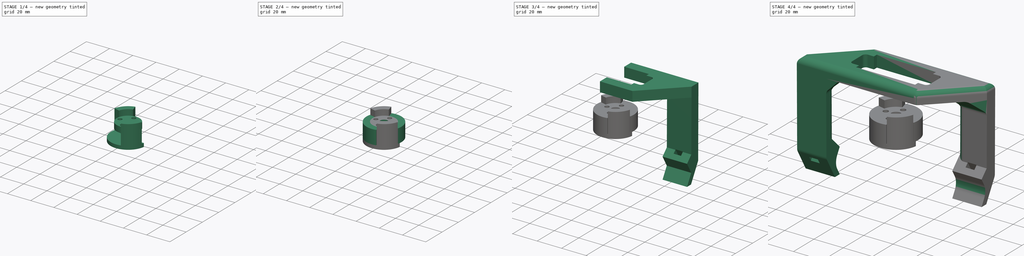
[diagram: build sequence overview — one tinted view per stage of 4, left to right]
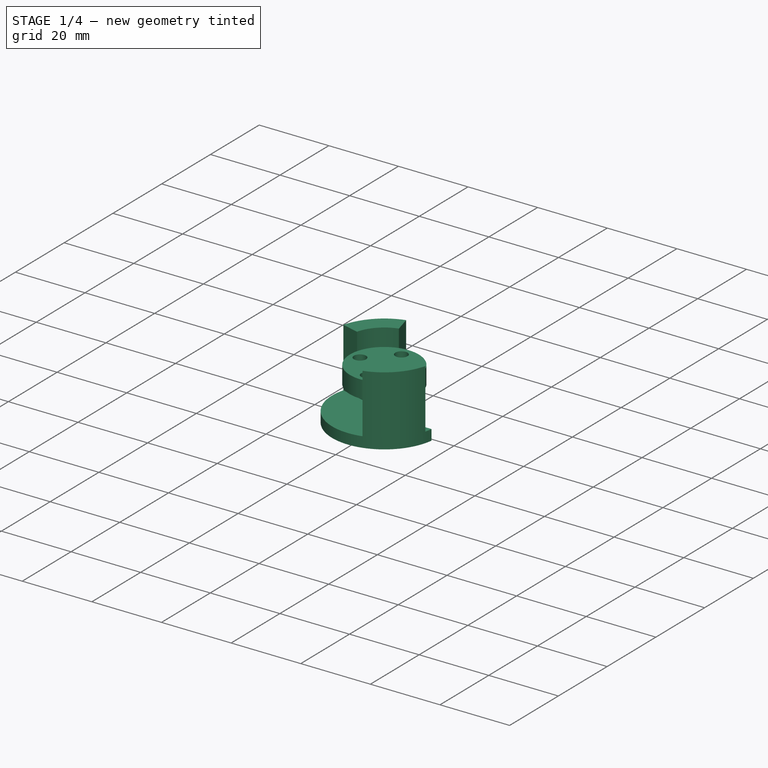
[diagram: stage 1 of 4 — iso view after this stage's code; geometry added in this stage tinted green]
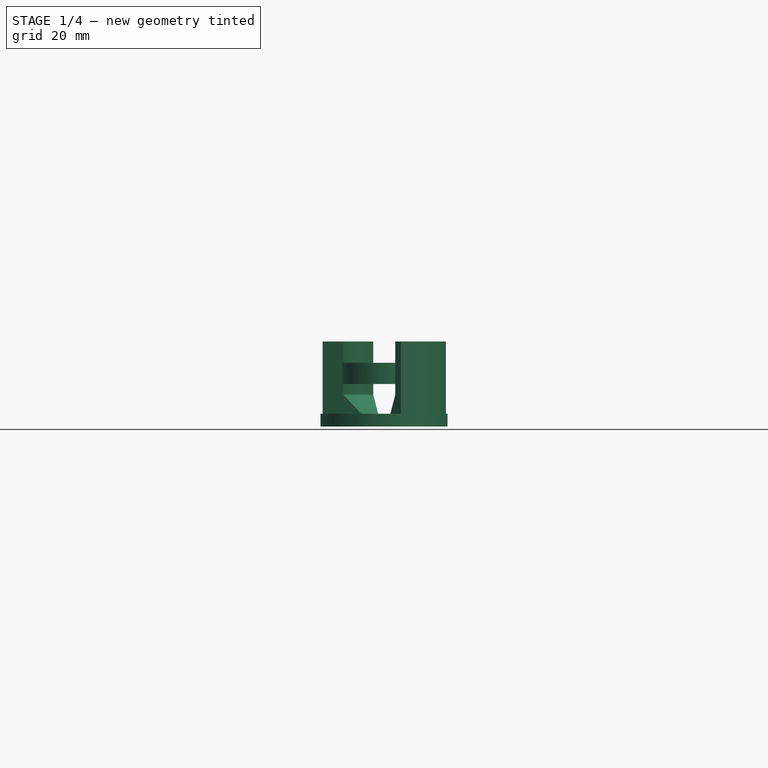
[diagram: stage 1 of 4 — front view after this stage's code; geometry added in this stage tinted green]
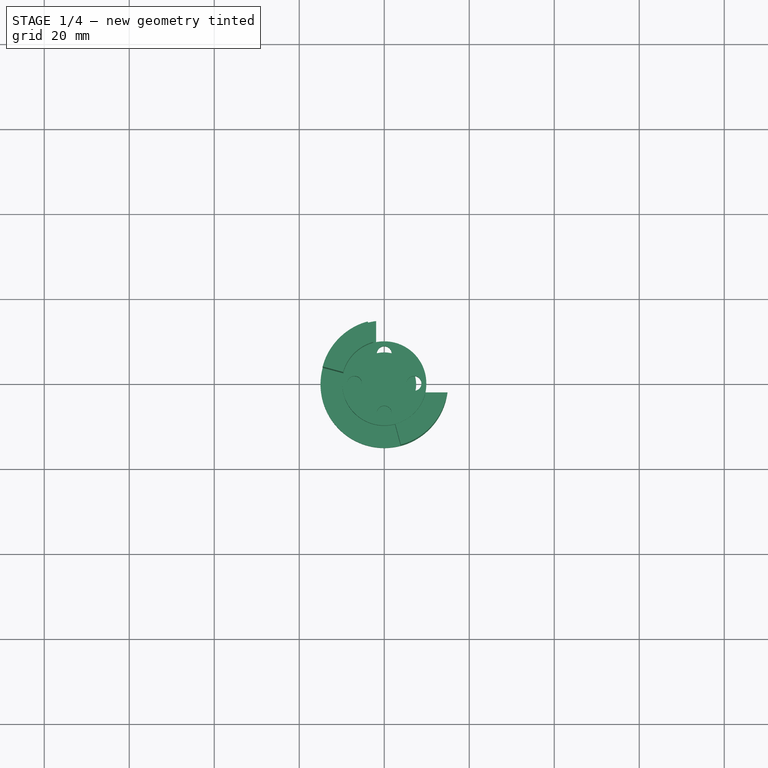
[diagram: stage 1 of 4 — top view after this stage's code; geometry added in this stage tinted green]
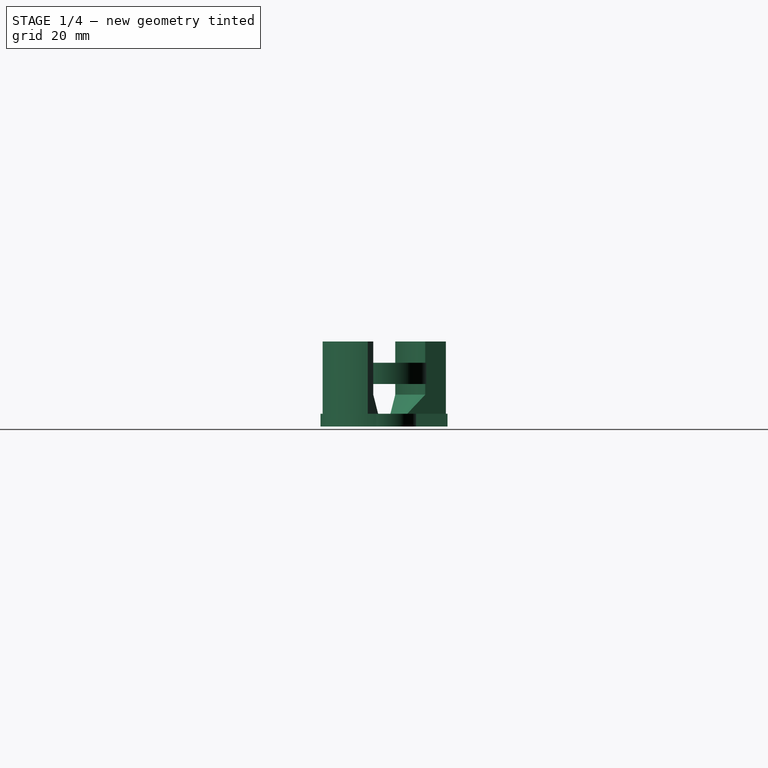
[diagram: stage 1 of 4 — right view after this stage's code; geometry added in this stage tinted green]
FCSTD DOCUMENT  (FreeCAD 0.21R)
Label: servo_valve
License: All rights reserved
LicenseURL: http://en.wikipedia.org/wiki/All_rights_reserved
objects: Sketcher::SketchObject×9, PartDesign::Pad×7, PartDesign::Plane×3, PartDesign::Body×3, App::Part×3, PartDesign::Pocket×2, PartDesign::Fillet×2, PartDesign::Chamfer×2, Spreadsheet::Sheet×1, Part::FeaturePython×1
note: 42 computed .brp shape members not serialized (recipe doc carries the construction recipe); baked Part::Feature solids carry a one-line shape summary decoded from their .brp

FEATURE [PartDesign::Plane] DatumPlane002
  AttachmentOffset = pos=(0,0,34.5) rot=(0,0,1;0rad)
  Length = 60
  MapMode = 5
  Placement = pos=(0,0,-34.5) rot=(0,1,0;3.14159rad)
  ResizeMode = 0
  Support = -> [XY_Plane005]
  Width = 60
  expr: .AttachmentOffset.Base.z = Spreadsheet.servo_horn_bracket_dist + Spreadsheet.horn_screw_head_height + Spreadsheet.lever_thickness_1 + Spreadsheet.nut_height + Spreadsheet.handle_thickness
FEATURE [Sketcher::SketchObject] Sketch010
  FullyConstrained = true
  MapMode = 5
  Placement = pos=(0,0,-34.5) rot=(0,1,0;3.14159rad)
  Support = -> [DatumPlane002]
  expr: Constraints[29] = Spreadsheet.notch_thickness
  expr: Constraints[30] = Spreadsheet.lever_rotation_features_thickness / 2
  expr: Constraints[3] = Spreadsheet.handle_screw_large_diameter
  expr: Constraints[4] = 2 * Spreadsheet.handle_hub_radius
  expr: Constraints[5] = Spreadsheet.lever_rotation_features_thickness * 2 + Spreadsheet.horn_outer_diameter
  expr: Constraints[9] = Spreadsheet.handle_screw_small_diameter
  sketch-geometry (18):
    g0: ArcOfCircle CenterX=0 CenterY=0 CenterZ=0 NormalX=0 NormalY=0 NormalZ=1 AngleXU=0 Radius=4 StartAngle=5.59194 EndAngle=6.97443
    g1: ArcOfCircle CenterX=0 CenterY=0 CenterZ=0 NormalX=0 NormalY=0 NormalZ=1 AngleXU=0 Radius=7.5 StartAngle=1.31467 EndAngle=3.39772
    g2: ArcOfCircle CenterX=0 CenterY=0 CenterZ=0 NormalX=0 NormalY=0 NormalZ=1 AngleXU=0 Radius=15 StartAngle=3.2686 EndAngle=7.72697
    g3: LineSegment StartX=-3.0818 StartY=2.55 StartZ=0 EndX=3.0818 EndY=2.55 EndZ=0
    g4: LineSegment StartX=-3.0818 StartY=-2.55 StartZ=0 EndX=3.0818 EndY=-2.55 EndZ=0
    g5: LineSegment StartX=1.9 StartY=7.25534 StartZ=0 EndX=1.9 EndY=14.8792 EndZ=0
    g6: LineSegment StartX=-7.25534 StartY=-1.9 StartZ=0 EndX=-14.8792 EndY=-1.9 EndZ=0
    g7: ArcOfCircle CenterX=0 CenterY=0 CenterZ=0 NormalX=0 NormalY=0 NormalZ=1 AngleXU=0 Radius=4 StartAngle=2.45034 EndAngle=3.83284
    g8: LineSegment StartX=-2.5 StartY=1.9 StartZ=0 EndX=-2.5 EndY=-1.9 EndZ=0
    g9: LineSegment StartX=-2.5 StartY=-1.9 StartZ=0 EndX=0 EndY=-1.9 EndZ=0
    g10: LineSegment StartX=0 StartY=-1.9 StartZ=0 EndX=0 EndY=1.9 EndZ=0
    g11: LineSegment StartX=0 StartY=1.9 StartZ=0 EndX=-2.5 EndY=1.9 EndZ=0
    g12: GeomPoint X=-1.25 Y=0 Z=0
    g13: LineSegment StartX=-1.9 StartY=2.5 StartZ=0 EndX=-1.9 EndY=0 EndZ=0
    g14: LineSegment StartX=-1.9 StartY=0 StartZ=0 EndX=1.9 EndY=0 EndZ=0
    g15: LineSegment StartX=1.9 StartY=0 StartZ=0 EndX=1.9 EndY=2.5 EndZ=0
    g16: LineSegment StartX=1.9 StartY=2.5 StartZ=0 EndX=-1.9 EndY=2.5 EndZ=0
    g17: GeomPoint X=0 Y=1.25 Z=0
  constraints (50):
    c: Coincident(g0,g-1)
    c: Coincident(g1,g0)
    c: Coincident(g2,g0)
    c: Diameter(g0) = 8
    c: Diameter(g1) = 15
    c: Diameter(g2) = 30
    c: Horizontal(g3)
    c: Horizontal(g4)
    c: Equal(g4,g3)
    c: DistanceY(g4,g3) = 5.1
    c: Coincident(g2,g5)
    c: Coincident(g2,g6)
    c: Coincident(g7,g4)
    c: Coincident(g0,g4)
    c: Equal(g0,g7)
    c: Coincident(g0,g3)
    c: Coincident(g7,g3)
    c: Coincident(g0,g7)
    c: Coincident(g8,g9)
    c: Coincident(g9,g10)
    c: Coincident(g10,g11)
    c: Coincident(g11,g8)
    c: Horizontal(g9)
    c: Horizontal(g11)
    c: Vertical(g8)
    c: Vertical(g10)
    c: Symmetric(g9,g8,g12)
    c: PointOnObject(g12,g-1)
    c: PointOnObject(g9,g-2)
    c: DistanceY(g8,g8) = 3.8
    c: DistanceX(g11,g11) = 2.5
    c: Coincident(g13,g14)
    c: Coincident(g14,g15)
    c: Coincident(g15,g16)
    c: Coincident(g16,g13)
    c: Horizontal(g14)
    c: Horizontal(g16)
    c: Vertical(g13)
    c: Vertical(g15)
    c: Symmetric(g14,g13,g17)
    c: PointOnObject(g17,g-2)
    c: PointOnObject(g14,g-1)
    c: Equal(g8,g16)
    c: Equal(g11,g13)
    c: Coincident(g5,g1)
    c: PointOnObject(g1,g15)
    c: Vertical(g5)
    c: Coincident(g1,g6)
    c: PointOnObject(g1,g9)
    c: Horizontal(g6)
FEATURE [PartDesign::Pad] Pad007
  Direction = (0,0,-1)
  Length = 3
  Length2 = 10
  Placement = pos=(0,0,-34.5) rot=(0,1,0;3.14159rad)
  Profile = -> Sketch010
  ReferenceAxis = -> Sketch010 [N_Axis]
  Reversed = true
  Type = 0
  expr: Length = Spreadsheet.handle_thickness
FEATURE [Sketcher::SketchObject] Sketch011
  FullyConstrained = true
  MapMode = 5
  Placement = pos=(4e-16,0,-31.5) rot=(0,0,1;3.14159rad)
  Support = -> [Pad007]
  expr: Constraints[2] = Spreadsheet.horn_outer_diameter
  expr: Constraints[3] = Spreadsheet.lever_rotation_features_thickness * 2 + Spreadsheet.horn_outer_diameter
  sketch-geometry (8):
    g0: ArcOfCircle CenterX=0 CenterY=0 CenterZ=0 NormalX=0 NormalY=0 NormalZ=1 AngleXU=0 Radius=10 StartAngle=1.8326 EndAngle=2.87979
    g1: ArcOfCircle CenterX=0 CenterY=0 CenterZ=0 NormalX=0 NormalY=0 NormalZ=1 AngleXU=0 Radius=15 StartAngle=1.8326 EndAngle=2.87979
    g2: LineSegment StartX=2.58819 StartY=-9.65926 StartZ=0 EndX=3.88229 EndY=-14.4889 EndZ=0
    g3: LineSegment StartX=9.65926 StartY=-2.58819 StartZ=0 EndX=14.4889 EndY=-3.88229 EndZ=0
    g4: LineSegment StartX=-9.65926 StartY=2.58819 StartZ=0 EndX=-14.4889 EndY=3.88229 EndZ=0
    g5: LineSegment StartX=-2.58819 StartY=9.65926 StartZ=0 EndX=-3.88229 EndY=14.4889 EndZ=0
    g6: ArcOfCircle CenterX=0 CenterY=0 CenterZ=0 NormalX=0 NormalY=0 NormalZ=1 AngleXU=0 Radius=10 StartAngle=4.97419 EndAngle=6.02139
    g7: ArcOfCircle CenterX=0 CenterY=0 CenterZ=0 NormalX=0 NormalY=0 NormalZ=1 AngleXU=0 Radius=15 StartAngle=4.97419 EndAngle=6.02139
  constraints (20):
    c: Coincident(g0,g-1)
    c: Coincident(g1,g0)
    c: Diameter(g0) = 20
    c: Diameter(g1) = 30
    c: Tangent(g3,g4)
    c: Tangent(g5,g2)
    c: Angle(g2,g-1) = 1.309
    c: Angle(g2,g3) = 1.0472
    c: Coincident(g6,g3)
    c: Perpendicular(g0,g5) = 4.71239
    c: Coincident(g7,g3)
    c: Coincident(g1,g5)
    c: Equal(g0,g6)
    c: Perpendicular(g0,g4) = 4.71239
    c: Coincident(g6,g2)
    c: Coincident(g0,g6)
    c: Equal(g1,g7)
    c: Coincident(g1,g4)
    c: Coincident(g7,g2)
    c: Coincident(g1,g7)
FEATURE [PartDesign::Pad] Pad008
  BaseFeature = -> Pad007
  Direction = (1e-16,0,1)
  Length = 17
  Length2 = 10
  Placement = pos=(0,0,-34.5) rot=(0,1,0;3.14159rad)
  Profile = -> Sketch011
  ReferenceAxis = -> Sketch011 [N_Axis]
  Type = 0
  expr: Length = Spreadsheet.horn_screw_head_height + Spreadsheet.lever_thickness_1 + Spreadsheet.horn_height + Spreadsheet.nut_height
FEATURE [PartDesign::Plane] DatumPlane003
  AttachmentOffset = pos=(0,0,19.5) rot=(0,0,1;0rad)
  Length = 60
  MapMode = 5
  Placement = pos=(0,0,-19.5) rot=(0,1,0;3.14159rad)
  ResizeMode = 0
  Support = -> [XY_Plane007]
  Width = 60
  expr: .AttachmentOffset.Base.z = Spreadsheet.servo_horn_bracket_dist
FEATURE [Sketcher::SketchObject] Sketch012
  FullyConstrained = true
  MapMode = 5
  Placement = pos=(0,0,-19.5) rot=(0,1,0;3.14159rad)
  Support = -> [DatumPlane003]
  expr: Constraints[14] = Spreadsheet.horn_hole_distance
  expr: Constraints[1] = Spreadsheet.horn_outer_diameter - Spreadsheet.lever_play
  expr: Constraints[22] = Spreadsheet.horn_hole_diameter
  sketch-geometry (10):
    g0: Circle CenterX=0 CenterY=0 CenterZ=0 NormalX=0 NormalY=0 NormalZ=1 AngleXU=0 Radius=9.9
    g1: LineSegment StartX=0 StartY=7 StartZ=0 EndX=-7 EndY=-3.5465e-12 EndZ=0
    g2: LineSegment StartX=-7 StartY=-3.5465e-12 StartZ=0 EndX=-1.2976e-12 EndY=-7 EndZ=0
    g3: LineSegment StartX=-1.2976e-12 StartY=-7 StartZ=0 EndX=7 EndY=-9.68e-14 EndZ=0
    g4: LineSegment StartX=7 StartY=-9.68e-14 StartZ=0 EndX=0 EndY=7 EndZ=0
    g5: Circle CenterX=0 CenterY=0 CenterZ=0 NormalX=0 NormalY=0 NormalZ=1 AngleXU=0 Radius=7
    g6: Circle CenterX=0 CenterY=7 CenterZ=0 NormalX=0 NormalY=0 NormalZ=1 AngleXU=0 Radius=1.75
    g7: Circle CenterX=7 CenterY=-9.68e-14 CenterZ=0 NormalX=0 NormalY=0 NormalZ=1 AngleXU=0 Radius=1.75
    g8: Circle CenterX=-1.2976e-12 CenterY=-7 CenterZ=0 NormalX=0 NormalY=0 NormalZ=1 AngleXU=0 Radius=1.75
    g9: Circle CenterX=-7 CenterY=-3.5465e-12 CenterZ=0 NormalX=0 NormalY=0 NormalZ=1 AngleXU=0 Radius=1.75
  constraints (24):
    c: Coincident(g0,g-1)
    c: Diameter(g0) = 19.8
    c: Coincident(g1,g2)
    c: Coincident(g2,g3)
    c: Coincident(g3,g4)
    c: Coincident(g4,g1)
    c: Equal(g1,g2)
    c: Equal(g1,g3)
    c: Equal(g1,g4)
    c: PointOnObject(g1,g5)
    c: PointOnObject(g2,g5)
    c: PointOnObject(g3,g5)
    c: PointOnObject(g4,g5)
    c: Coincident(g5,g0)
    c: Diameter(g5) = 14
    c: Coincident(g6,g1)
    c: Coincident(g7,g3)
    c: Coincident(g8,g2)
    c: Coincident(g9,g1)
    c: Equal(g6,g9)
    c: Equal(g6,g7)
    c: Equal(g8,g6)
    c: Diameter(g6) = 3.5
    c: PointOnObject(g6,g-2)
FEATURE [PartDesign::Pad] Pad009
  Direction = (0,0,-1)
  Length = 5
  Length2 = 10
  Placement = pos=(0,0,-19.5) rot=(0,1,0;3.14159rad)
  Profile = -> Sketch012
  ReferenceAxis = -> Sketch012 [N_Axis]
  Type = 0
  expr: Length = Spreadsheet.lever_thickness_1
FEATURE [PartDesign::Body] Body003
  Group = -> [DatumPlane003,Sketch012,Pad009,Sketch013,Pad010,Sketch014,Pocket002,Sketch015,Pad011]
  Origin = -> Origin007
  Tip = -> Pad011
FEATURE [App::Part] Part003  label="Lever_top"
  Group = -> [Body003]
  Origin = -> Origin006
FEATURE [PartDesign::Chamfer] Chamfer001
  Angle = 45
  Base = -> Pad008 [Edge18,Edge22]
  BaseFeature = -> Pad008
  ChamferType = 1
  FlipDirection = false
  Placement = pos=(0,0,-34.5) rot=(0,1,0;3.14159rad)
  Size = 4.39954
  Size2 = 4.5
  SupportTransform = false
  UseAllEdges = false
  expr: Size = (Spreadsheet.horn_outer_diameter - Spreadsheet.nut_diameter / 0.866) / 2
  expr: Size2 = Spreadsheet.nut_height
FEATURE [PartDesign::Body] Body002
  Group = -> [DatumPlane002,Sketch010,Pad007,Sketch011,Pad008,Chamfer001]
  Origin = -> Origin005
  Tip = -> Chamfer001
FEATURE [App::Part] Part002  label="Lever_bottom"
  Group = -> [Body002]
  Origin = -> Origin004
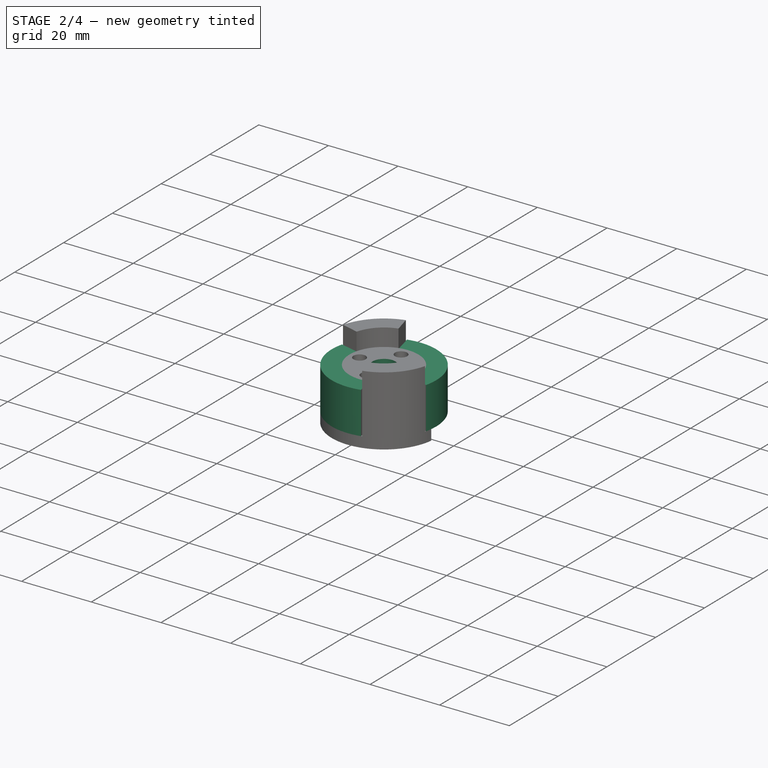
[diagram: stage 2 of 4 — iso view after this stage's code; geometry added in this stage tinted green]
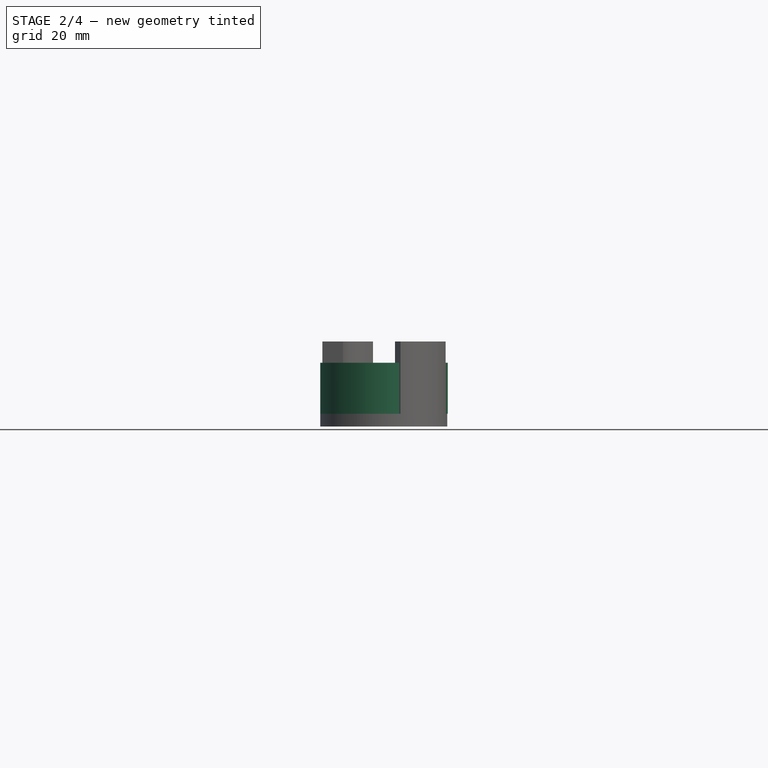
[diagram: stage 2 of 4 — front view after this stage's code; geometry added in this stage tinted green]
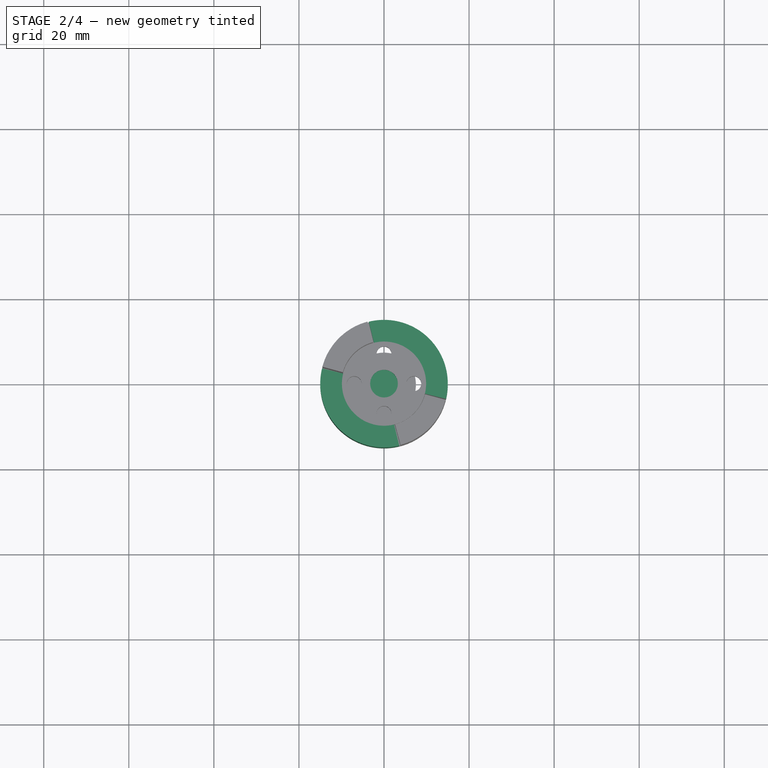
[diagram: stage 2 of 4 — top view after this stage's code; geometry added in this stage tinted green]
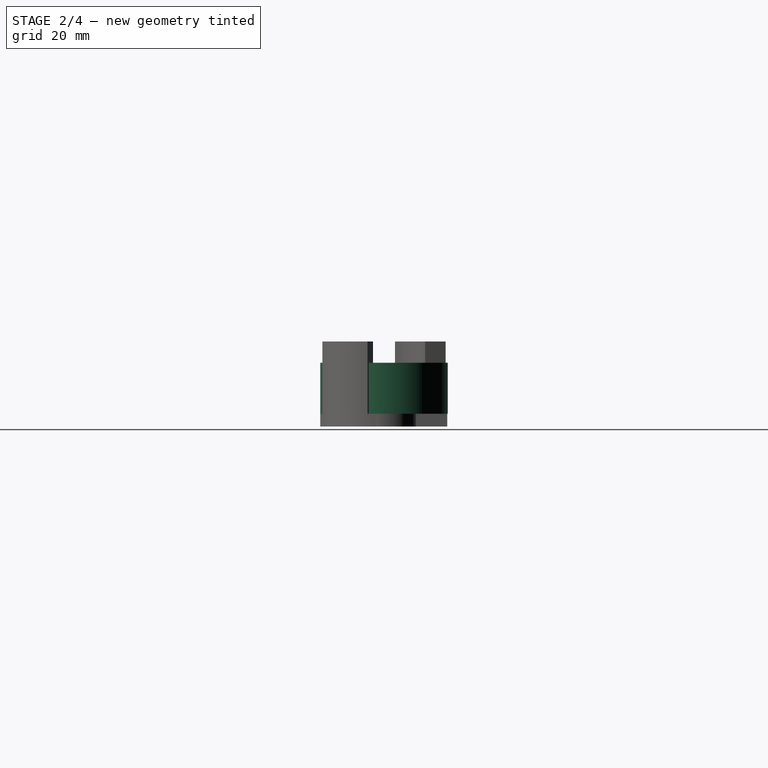
[diagram: stage 2 of 4 — right view after this stage's code; geometry added in this stage tinted green]
FEATURE [Sketcher::SketchObject] Sketch013
  FullyConstrained = true
  MapMode = 5
  Placement = pos=(-6e-16,0,-24.5) rot=(0,1,0;3.14159rad)
  Support = -> [Pad009]
  expr: Constraints[15] = Spreadsheet.horn_hole_distance
  expr: Constraints[1] = Spreadsheet.horn_outer_diameter - Spreadsheet.lever_play
  expr: Constraints[23] = Spreadsheet.horn_screw_head_diameter
  sketch-geometry (10):
    g0: Circle CenterX=0 CenterY=0 CenterZ=0 NormalX=0 NormalY=0 NormalZ=1 AngleXU=0 Radius=9.9
    g1: LineSegment StartX=-9e-16 StartY=7 StartZ=0 EndX=-7 EndY=-9e-16 EndZ=0
    g2: LineSegment StartX=-7 StartY=-9e-16 StartZ=0 EndX=1.8e-15 EndY=-7 EndZ=0
    g3: LineSegment StartX=1.8e-15 StartY=-7 StartZ=0 EndX=7 EndY=9e-16 EndZ=0
    g4: LineSegment StartX=7 StartY=9e-16 StartZ=0 EndX=-9e-16 EndY=7 EndZ=0
    g5: Circle CenterX=0 CenterY=0 CenterZ=0 NormalX=0 NormalY=0 NormalZ=1 AngleXU=0 Radius=7
    g6: Circle CenterX=-9e-16 CenterY=7 CenterZ=0 NormalX=0 NormalY=0 NormalZ=1 AngleXU=0 Radius=2.75
    g7: Circle CenterX=7 CenterY=9e-16 CenterZ=0 NormalX=0 NormalY=0 NormalZ=1 AngleXU=0 Radius=2.75
    g8: Circle CenterX=1.8e-15 CenterY=-7 CenterZ=0 NormalX=0 NormalY=0 NormalZ=1 AngleXU=0 Radius=2.75
    g9: Circle CenterX=-7 CenterY=-9e-16 CenterZ=0 NormalX=0 NormalY=0 NormalZ=1 AngleXU=0 Radius=2.75
  constraints (24):
    c: Coincident(g0,g-1)
    c: Diameter(g0) = 19.8
    c: Coincident(g1,g2)
    c: Coincident(g2,g3)
    c: Coincident(g3,g4)
    c: Coincident(g4,g1)
    c: Equal(g1,g2)
    c: Equal(g1,g3)
    c: Equal(g1,g4)
    c: PointOnObject(g1,g5)
    c: PointOnObject(g2,g5)
    c: PointOnObject(g3,g5)
    c: PointOnObject(g4,g5)
    c: Coincident(g5,g0)
    c: PointOnObject(g4,g-2)
    c: Diameter(g5) = 14
    c: Coincident(g6,g1)
    c: Coincident(g7,g3)
    c: Coincident(g8,g2)
    c: Coincident(g9,g1)
    c: Equal(g6,g7)
    c: Equal(g8,g6)
    c: Equal(g6,g9)
    c: Diameter(g6) = 5.5
FEATURE [PartDesign::Pad] Pad010
  BaseFeature = -> Pad009
  Direction = (-1e-16,0,-1)
  Length = 2.5
  Length2 = 10
  Placement = pos=(0,0,-19.5) rot=(0,1,0;3.14159rad)
  Profile = -> Sketch013
  ReferenceAxis = -> Sketch013 [N_Axis]
  Type = 0
  expr: Length = Spreadsheet.horn_screw_head_height
FEATURE [Sketcher::SketchObject] Sketch014
  FullyConstrained = true
  MapMode = 5
  Placement = pos=(0,0,-19.5) rot=(0,1,0;3.14159rad)
  Support = -> [DatumPlane003]
  expr: Constraints[1] = Spreadsheet.servo_horn_lock_screw_diameter
  sketch-geometry (1):
    g0: Circle CenterX=0 CenterY=0 CenterZ=0 NormalX=0 NormalY=0 NormalZ=1 AngleXU=0 Radius=3.25
  constraints (2):
    c: Coincident(g0,g-1)
    c: Diameter(g0) = 6.5
FEATURE [PartDesign::Pocket] Pocket002
  BaseFeature = -> Pad010
  Direction = (0,0,1)
  Length = 2
  Length2 = 5
  Placement = pos=(0,0,-19.5) rot=(0,1,0;3.14159rad)
  Profile = -> Sketch014
  ReferenceAxis = -> Sketch014 [N_Axis]
  Reversed = true
  Type = 0
  expr: Length = Spreadsheet.servo_horn_lock_screw_height
FEATURE [Sketcher::SketchObject] Sketch015
  FullyConstrained = true
  MapMode = 5
  Placement = pos=(0,0,-19.5) rot=(0,1,0;3.14159rad)
  Support = -> [DatumPlane003]
  expr: Constraints[24] = Spreadsheet.lever_play
  expr: Constraints[29] = Spreadsheet.lever_play
  expr: Constraints[2] = Spreadsheet.lever_rotation_features_thickness * 2 + Spreadsheet.horn_outer_diameter
  expr: Constraints[30] = Spreadsheet.lever_play
  expr: Constraints[31] = Spreadsheet.lever_play
  expr: Constraints[3] = Spreadsheet.horn_outer_diameter - Spreadsheet.lever_play
  sketch-geometry (10):
    g0: ArcOfCircle CenterX=0 CenterY=0 CenterZ=0 NormalX=0 NormalY=0 NormalZ=1 AngleXU=0 Radius=9.9 StartAngle=1.3292 EndAngle=3.38319
    g1: ArcOfCircle CenterX=0 CenterY=0 CenterZ=0 NormalX=0 NormalY=0 NormalZ=1 AngleXU=0 Radius=15 StartAngle=1.3292 EndAngle=3.38319
    g2: LineSegment StartX=9.61248 StartY=2.3686 StartZ=0 EndX=14.5644 EndY=3.58879 EndZ=0
    g3: LineSegment StartX=-2.3686 StartY=-9.61248 StartZ=0 EndX=-3.58879 EndY=-14.5644 EndZ=0
    g4: LineSegment StartX=2.3686 StartY=9.61248 StartZ=0 EndX=3.58879 EndY=14.5644 EndZ=0
    g5: LineSegment StartX=-9.61248 StartY=-2.3686 StartZ=0 EndX=-14.5644 EndY=-3.58879 EndZ=0
    g6: ArcOfCircle CenterX=0 CenterY=0 CenterZ=0 NormalX=0 NormalY=0 NormalZ=1 AngleXU=0 Radius=15 StartAngle=4.47079 EndAngle=6.52478
    g7: ArcOfCircle CenterX=0 CenterY=0 CenterZ=0 NormalX=0 NormalY=0 NormalZ=1 AngleXU=0 Radius=9.9 StartAngle=4.47079 EndAngle=6.52478
    g8: LineSegment StartX=3.88229 StartY=14.4889 StartZ=0 EndX=-3.88229 EndY=-14.4889 EndZ=0
    g9: LineSegment StartX=-14.4889 StartY=-3.88229 StartZ=0 EndX=14.4889 EndY=3.88229 EndZ=0
  constraints (36):
    c: Coincident(g0,g-1)
    c: Coincident(g1,g0)
    c: Diameter(g1) = 30
    c: Diameter(g0) = 19.8
    c: PointOnObject(g2,g0)
    c: PointOnObject(g2,g1)
    c: PointOnObject(g3,g0)
    c: PointOnObject(g3,g1)
    c: Equal(g1,g6)
    c: Coincident(g1,g6)
    c: Equal(g0,g7)
    c: Coincident(g0,g7)
    c: PointOnObject(g6,g2)
    c: PointOnObject(g7,g2)
    c: PointOnObject(g7,g3)
    c: PointOnObject(g6,g3)
    c: Coincident(g0,g5)
    c: Coincident(g1,g5)
    c: Coincident(g1,g4)
    c: Coincident(g0,g4)
    c: PointOnObject(g0,g8)
    c: PointOnObject(g0,g9)
    c: Angle(g9,g-1) = 2.87979
    c: Angle(g-2,g8) = 2.87979
    c: Distance(g2,g9) = 0.2
    c: PointOnObject(g8,g1)
    c: PointOnObject(g9,g6)
    c: PointOnObject(g8,g6)
    c: PointOnObject(g9,g1)
    c: Distance(g0,g9) = 0.2
    c: Distance(g0,g8) = 0.2
    c: Distance(g3,g8) = 0.2
    c: Perpendicular(g0,g5)
    c: Perpendicular(g0,g4)
    c: Perpendicular(g7,g2)
    c: Perpendicular(g7,g3)
FEATURE [PartDesign::Pad] Pad011
  BaseFeature = -> Pocket002
  Direction = (0,0,-1)
  Length = 12
  Length2 = 10
  Placement = pos=(0,0,-19.5) rot=(0,1,0;3.14159rad)
  Profile = -> Sketch015
  ReferenceAxis = -> Sketch015 [N_Axis]
  Type = 0
  expr: Length = Spreadsheet.lever_thickness_1 + Spreadsheet.horn_screw_head_height + Spreadsheet.nut_height
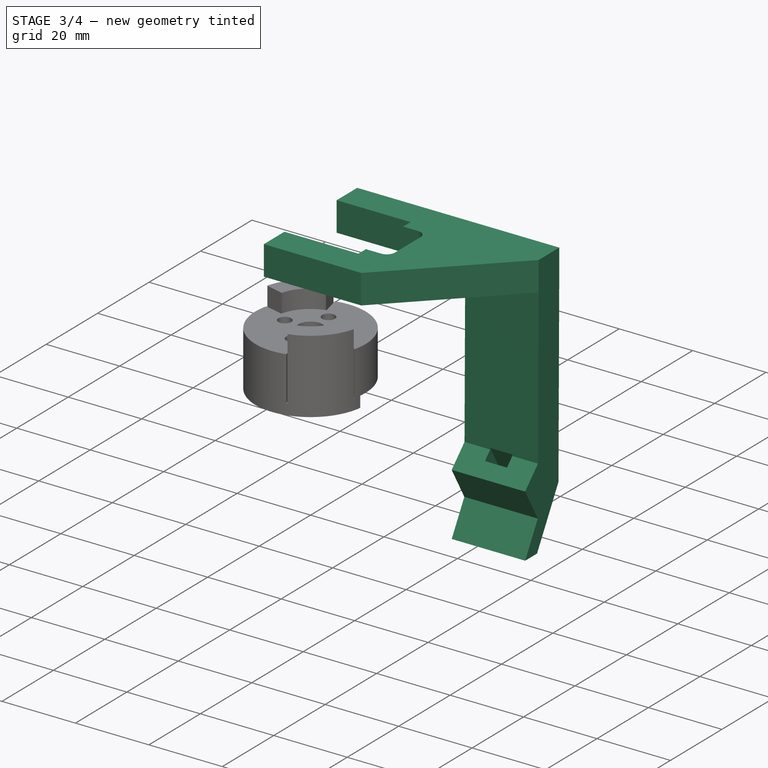
[diagram: stage 3 of 4 — iso view after this stage's code; geometry added in this stage tinted green]
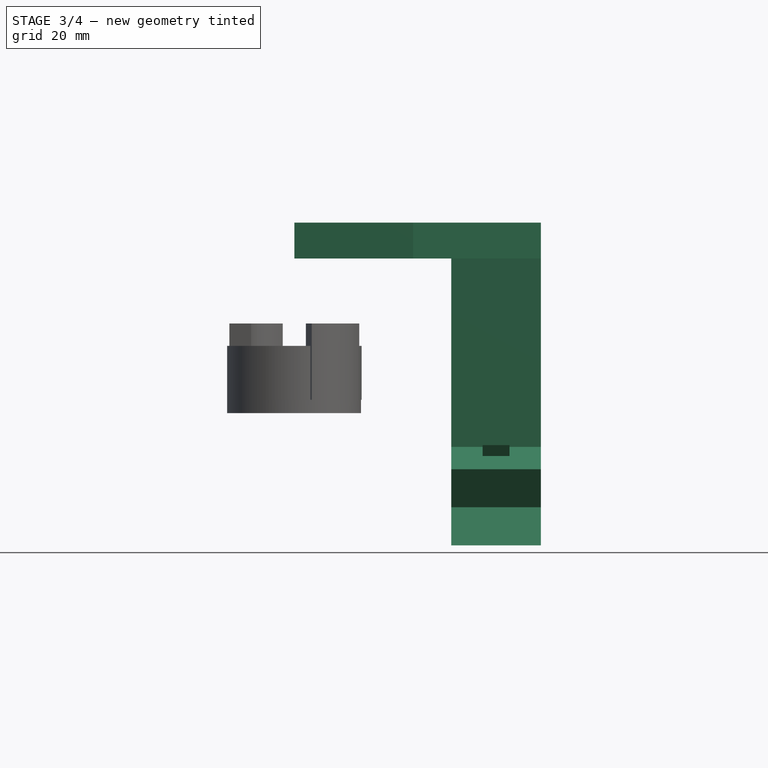
[diagram: stage 3 of 4 — front view after this stage's code; geometry added in this stage tinted green]
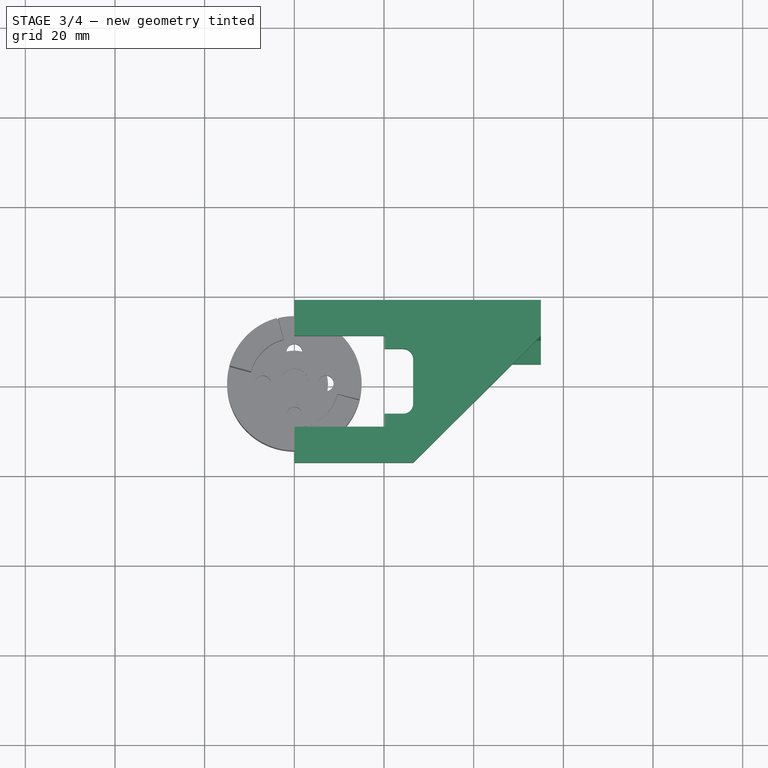
[diagram: stage 3 of 4 — top view after this stage's code; geometry added in this stage tinted green]
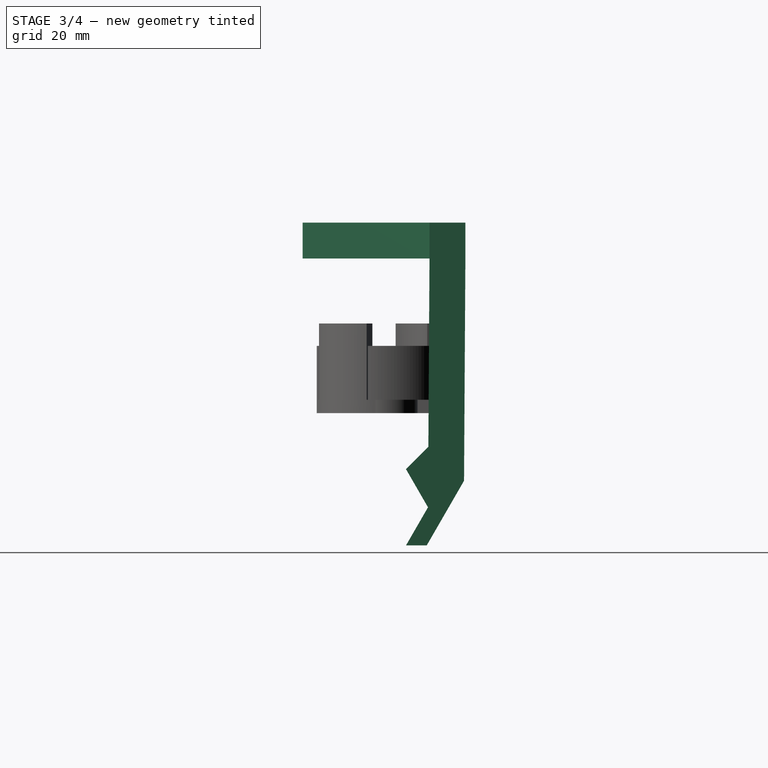
[diagram: stage 3 of 4 — right view after this stage's code; geometry added in this stage tinted green]
FEATURE [Sketcher::SketchObject] Sketch
  FullyConstrained = true
  MapMode = 5
  Support = -> [XY_Plane002]
  expr: Constraints[11] = Spreadsheet.servo_width + Spreadsheet.bracket_servo_play
  expr: Constraints[12] = Spreadsheet.bracket_width
  expr: Constraints[15] = (Spreadsheet.servo_length + Spreadsheet.bracket_servo_play) / 2
  expr: Constraints[22] = Spreadsheet.bracket_arm_length
  expr: Constraints[27] = Spreadsheet.bracket_width
  expr: Constraints[34] = Spreadsheet.servo_holes_dia
  expr: Constraints[35] = Spreadsheet.servo_holes_dist
  expr: Constraints[37] = Spreadsheet.servo_bracket_length / 2
  expr: Constraints[39] = Spreadsheet.servo_bracket_length / 2
  sketch-geometry (15):
    g0: LineSegment StartX=0 StartY=10.15 StartZ=0 EndX=20.15 EndY=10.15 EndZ=0
    g1: LineSegment StartX=20.15 StartY=10.15 StartZ=0 EndX=20.15 EndY=7.25 EndZ=0
    g2: LineSegment StartX=20.15 StartY=-10.15 StartZ=0 EndX=0 EndY=-10.15 EndZ=0
    g3: LineSegment StartX=0 StartY=-10.15 StartZ=0 EndX=0 EndY=-18.15 EndZ=0
    g4: LineSegment StartX=0 StartY=-18.15 StartZ=0 EndX=26.5 EndY=-18.15 EndZ=0
    g5: LineSegment StartX=55 StartY=18.15 StartZ=0 EndX=0 EndY=18.15 EndZ=0
    g6: LineSegment StartX=0 StartY=18.15 StartZ=0 EndX=0 EndY=10.15 EndZ=0
    g7: LineSegment StartX=24.25 StartY=7.25 StartZ=0 EndX=20.15 EndY=7.25 EndZ=0
    g8: LineSegment StartX=20.15 StartY=-7.25 StartZ=0 EndX=24.25 EndY=-7.25 EndZ=0
    g9: LineSegment StartX=20.15 StartY=-7.25 StartZ=0 EndX=20.15 EndY=-10.15 EndZ=0
    g10: LineSegment StartX=55 StartY=18.15 StartZ=0 EndX=55 EndY=10.15 EndZ=0
    g11: LineSegment StartX=55 StartY=10.15 StartZ=0 EndX=26.5 EndY=-18.15 EndZ=0
    g12: LineSegment StartX=26.5 StartY=5 StartZ=0 EndX=26.5 EndY=-5 EndZ=0
    g13: ArcOfCircle CenterX=24.25 CenterY=5 CenterZ=0 NormalX=0 NormalY=0 NormalZ=1 AngleXU=0 Radius=2.25 StartAngle=0 EndAngle=1.5708
    g14: ArcOfCircle CenterX=24.25 CenterY=-5 CenterZ=0 NormalX=0 NormalY=0 NormalZ=1 AngleXU=0 Radius=2.25 StartAngle=4.71239 EndAngle=6.28319
  constraints (40):
    c: Horizontal(g0)
    c: Coincident(g0,g1)
    c: Vertical(g1)
    c: Coincident(g9,g2)
    c: Horizontal(g2)
    c: Coincident(g2,g3)
    c: Coincident(g3,g4)
    c: Horizontal(g4)
    c: Horizontal(g5)
    c: Coincident(g5,g6)
    c: Coincident(g6,g0)
    c: DistanceY(g9,g1) = 20.3
    c: DistanceY(g6,g6) = 8
    c: Symmetric(g0,g2,g-1)
    c: Equal(g6,g3)
    c: DistanceX(g0,g0) = 20.15
    c: Horizontal(g8)
    c: Coincident(g7,g1)
    c: Horizontal(g7)
    c: Tangent(g1,g9)
    c: Coincident(g8,g9)
    c: Tangent(g6,g3)
    c: DistanceX(g5,g5) = 55
    c: Coincident(g5,g10)
    c: Vertical(g10)
    c: Coincident(g10,g11)
    c: Coincident(g11,g4)
    c: DistanceY(g10,g10) = 8
    c: Vertical(g12)
    c: Tangent(g7,g13) = -1.5708
    c: Tangent(g12,g13) = 1.5708
    c: Tangent(g8,g14) = -1.5708
    c: Tangent(g12,g14) = 1.5708
    c: Equal(g13,g14)
    c: Diameter(g13) = 4.5
    c: DistanceY(g14,g13) = 10
    c: Equal(g1,g9)
    c: DistanceX(g-1,g12) = 26.5
    c: PointOnObject(g0,g-2)
    c: DistanceX(g4,g4) = 26.5
FEATURE [Spreadsheet::Sheet] Spreadsheet
  cells = A1=Parameter; B1=Value; C1=Description; A2=Servo; A3=Servo width; B3(servo_width)=20; C3=Servo width - typically 20 mm; A4=Servo Length; B4(servo_length)=40; C4=Servo length = typically 40 mm; A5=Servo bracket length; B5(servo_bracket_length)=53; C5=Total length of the servo, including the mounting bracket; A6=Servo mounting holes distance; B6(servo_holes_dist)=10; C6=Distance between the centers of two mounting holes on one side of the mounting bracket; A7=Servo mounting holes diameter; B7(servo_holes_dia)=4.5; C7=Diameter of the servo's four mounting holes; A8=Servo Horn / Hub; A9=Servo horn - mounting bracket distance; B9(servo_horn_bracket_dist)=19.5; C9=Distance between the bottom of the servo horn to the top of the servo's mounting bracket; A10=Servo horn lock screw head diameter; B10(servo_horn_lock_screw_diameter)=6.5; C10=Screw that locks the horn in place on the servo gear; A11=Servo horn lock screw head height; B11(servo_horn_lock_screw_height)=2; A12=Horn Holes diameter; B12(horn_hole_distance)=14; C12=Distance between two opposite holes on the Servo Horn; A13=Horn Hole size; B13(horn_hole_diameter)=3.5; C13=Diameter of the holes on the horn; A14=Horn outer diameter; B14(horn_outer_diameter)=20; C14=Diameter of the servo horn / hub (disc model); A15=Horn total height; B15(horn_height)=5; A16=Horn screws head diameter; B16(horn_screw_head_diameter)=5.5; C16=Screws that attach things to the horn; A17=Horn screws head height; B17(horn_screw_head_height)=2.5; A18=Valve & Pipe; A19=Pipe Outer Diameter; B19(pipe_od)=17; A20=Pipe to Handle's bottom distance; B20(pipe_handle_bot_dist)=21; C20=Distance from the center of the pipe to the lowest part of the handle.; A21=Handle screw round part diameter; B21(handle_screw_large_diameter)=8; C21=Length of the long part of the rectangular hole where the handle joins the valve - loose fit; A22=Handle screw flat part diameter; B22(handle_screw_small_diameter)=5.1; C22=Length of the short part of the rectangular hole - Tight fit; A23=Handle bottom part thickness; B23(handle_thickness)=3; C23=Thickness of the handle where it is screwed into the valve; A24=Handle nut flat diameter; B24(nut_diameter)=9.699999999999999; C24=Distance between two parallel flat sides; A25=Handle nut height; B25(nut_height)=4.5; A26=Handle hub radius; B26(handle_hub_radius)=7.5; C26=Radius from the center of the screw to the notch (on the valve) that prevents rotation; A27=Valve stopping notch thickness; B27(notch_thickness)=3.8; C27=Thickness of the notch that prevents rotation; A28=Lever - 3D printing; A29=Lever thickness 1; B29(lever_thickness_1)=5; C29=Should equal (horn screws' length - total horn height); A30=Lever rotation features thickness; B30(lever_rotation_features_thickness)=5; A31=Lever play; B31(lever_play)=0.2; C31=3D printing play; A32=Bracket - 3D printing; A33=Bracket - servo play; B33(bracket_servo_play)=0.3; A34=Bracket width; B34(bracket_width)=8; A35=Bracket arms length; B35(bracket_arm_length)=55; C35=Distance from the center of the servo to the end of the bracket on the pipe; A36=Bracket arm width; B36(bracket_arm_width)=20; C36=Width of the descending arms of the bracket; A37=Tie-wrap hole width; B37(tie_wrap_width)=6; A38=Tie-wrap hole height; B38(tie_wrap_height)=3
FEATURE [PartDesign::Pad] Pad
  Direction = (0,0,1)
  Length = 8
  Length2 = 10
  Profile = -> Sketch
  ReferenceAxis = -> Sketch [N_Axis]
  Type = 0
  expr: Length = Spreadsheet.bracket_width
FEATURE [Sketcher::SketchObject] Sketch002
  FullyConstrained = true
  MapMode = 5
  Placement = pos=(55,0,0) rot=(0.57735,0.57735,0.57735;2.0944rad)
  Support = -> [Pad]
  expr: Constraints[13] = Spreadsheet.pipe_od
  expr: Constraints[17] = Spreadsheet.servo_horn_bracket_dist + Spreadsheet.lever_thickness_1 + Spreadsheet.horn_screw_head_height + Spreadsheet.nut_height + Spreadsheet.pipe_handle_bot_dist + Spreadsheet.handle_thickness
  expr: Constraints[30] = Spreadsheet.pipe_od
  expr: Constraints[7] = Spreadsheet.bracket_width
  expr: Constraints[8] = (Spreadsheet.servo_width + Spreadsheet.bracket_servo_play) / 2
  sketch-geometry (11):
    g0: LineSegment StartX=10.15 StartY=0.001 StartZ=0 EndX=9.89638 EndY=-42.0111 EndZ=0
    g1: LineSegment StartX=9.89638 StartY=-42.0111 StartZ=0 EndX=4.90748 EndY=-47 EndZ=0
    g2: LineSegment StartX=4.90748 StartY=-47 StartZ=0 EndX=9.81495 EndY=-55.5 EndZ=0
    g3: LineSegment StartX=9.81495 StartY=-55.5 StartZ=0 EndX=4.90748 EndY=-64 EndZ=0
    g4: LineSegment StartX=4.90748 StartY=-64 StartZ=0 EndX=9.52628 EndY=-64 EndZ=0
    g5: LineSegment StartX=17.8507 StartY=-49.5817 StartZ=0 EndX=18.15 EndY=0.001 EndZ=0
    g6: LineSegment StartX=18.15 StartY=0.001 StartZ=0 EndX=10.15 EndY=0.001 EndZ=0
    g7: LineSegment StartX=0 StartY=-55.5 StartZ=0 EndX=9.81495 EndY=-55.5 EndZ=0
    g8: LineSegment StartX=17.8507 StartY=-49.5817 StartZ=0 EndX=9.52628 EndY=-64 EndZ=0
    g9: LineSegment StartX=9.52628 StartY=-64 StartZ=0 EndX=6.06218 EndY=-62 EndZ=0
    g10: Circle CenterX=0 CenterY=-55.5 CenterZ=0 NormalX=0 NormalY=0 NormalZ=1 AngleXU=0 Radius=8.5
  constraints (32):
    c: Coincident(g0,g1)
    c: Coincident(g1,g2)
    c: Coincident(g2,g3)
    c: Coincident(g3,g4)
    c: Horizontal(g4)
    c: Coincident(g5,g6)
    c: Coincident(g6,g0)
    c: DistanceX(g6,g6) = 8
    c: DistanceX(g-1,g0) = 10.15
    c: Angle(g2,g3) = 2.0944
    c: Angle(g2,g-1) = 1.0472
    c: PointOnObject(g2,g0)
    c: Parallel(g5,g0)
    c: DistanceY(g3,g1) = 17
    c: Equal(g2,g3)
    c: Coincident(g7,g2)
    c: Horizontal(g7)
    c: DistanceY(g2,g-1) = 55.5
    c: Horizontal(g6)
    c: DistanceY(g-1,g0) = 0.001
    c: Coincident(g8,g5)
    c: Coincident(g8,g4)
    c: Parallel(g8,g3)
    c: Coincident(g9,g4)
    c: PointOnObject(g9,g3)
    c: Perpendicular(g3,g9)
    c: Distance(g9) = 4
    c: PointOnObject(g7,g-2)
    c: Angle(g-1,g1) = 0.785398
    c: Coincident(g10,g7)
    c: Diameter(g10) = 17
    c: Tangent(g2,g10)
FEATURE [PartDesign::Pad] Pad002
  BaseFeature = -> Pad
  Direction = (1,0,0)
  Length = 20
  Length2 = 10
  Profile = -> Sketch002
  ReferenceAxis = -> Sketch002 [N_Axis]
  Reversed = true
  Type = 0
  expr: Length = Spreadsheet.bracket_arm_width
FEATURE [PartDesign::Plane] DatumPlane
  AttachmentOffset = pos=(0,0,0) rot=(1,0,0;1.5708rad)
  Length = 121.01
  MapMode = 45
  Placement = pos=(45,7.36122,-51.25) rot=(0.250563,-0.935113,-0.250563;1.63783rad)
  ResizeMode = 0
  Support = -> [Pad002]
  Width = 106.735
FEATURE [Sketcher::SketchObject] Sketch003
  FullyConstrained = true
  MapMode = 5
  Placement = pos=(45,7.36122,-51.25) rot=(0.250563,-0.935113,-0.250563;1.63783rad)
  Support = -> [DatumPlane]
  expr: Constraints[10] = Spreadsheet.tie_wrap_height
  sketch-geometry (5):
    g0: LineSegment StartX=-25 StartY=4 StartZ=0 EndX=-25 EndY=7 EndZ=0
    g1: LineSegment StartX=-25 StartY=7 StartZ=0 EndX=25 EndY=7 EndZ=0
    g2: LineSegment StartX=25 StartY=7 StartZ=0 EndX=25 EndY=4 EndZ=0
    g3: LineSegment StartX=25 StartY=4 StartZ=0 EndX=-25 EndY=4 EndZ=0
    g4: GeomPoint X=0 Y=5.5 Z=0
  constraints (13):
    c: Coincident(g0,g1)
    c: Coincident(g1,g2)
    c: Coincident(g2,g3)
    c: Coincident(g3,g0)
    c: Horizontal(g1)
    c: Horizontal(g3)
    c: Vertical(g0)
    c: Vertical(g2)
    c: Symmetric(g1,g0,g4)
    c: PointOnObject(g4,g-2)
    c: DistanceY(g2,g2) = 3
    c: DistanceY(g-1,g2) = 4
    c: DistanceX(g3,g3) = 50
FEATURE [PartDesign::Pocket] Pocket
  BaseFeature = -> Pad002
  Direction = (1,-3e-16,1e-16)
  Length = 6
  Length2 = 5
  Midplane = true
  Profile = -> Sketch003
  ReferenceAxis = -> Sketch003 [N_Axis]
  Type = 0
  expr: Length = Spreadsheet.tie_wrap_width
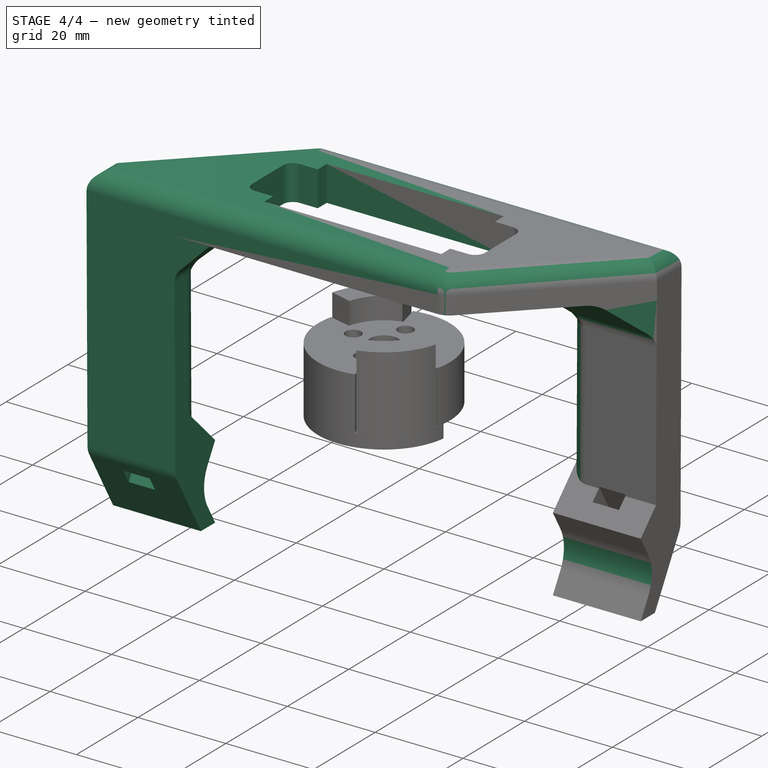
[diagram: stage 4 of 4 — iso view after this stage's code; geometry added in this stage tinted green]
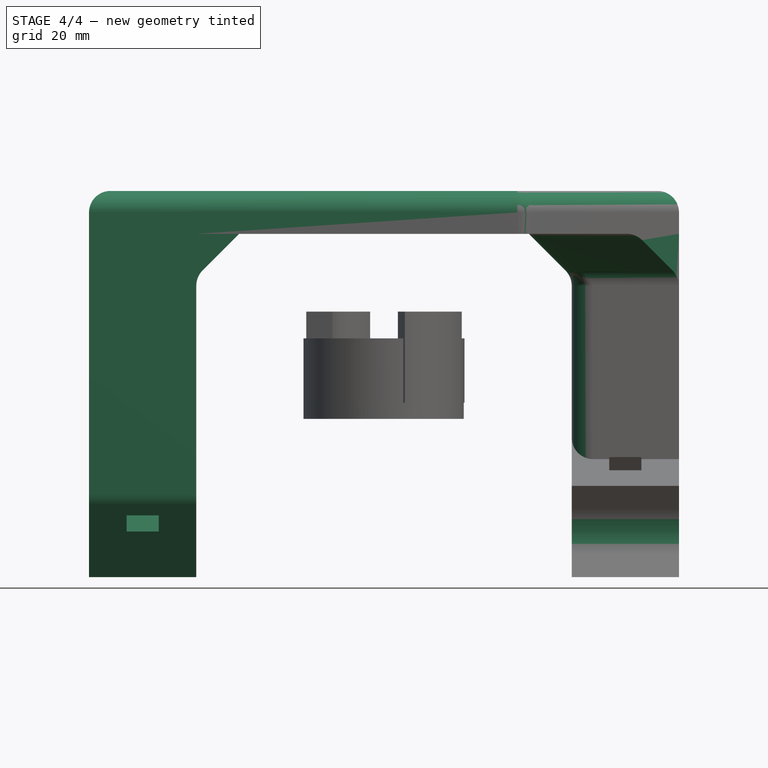
[diagram: stage 4 of 4 — front view after this stage's code; geometry added in this stage tinted green]
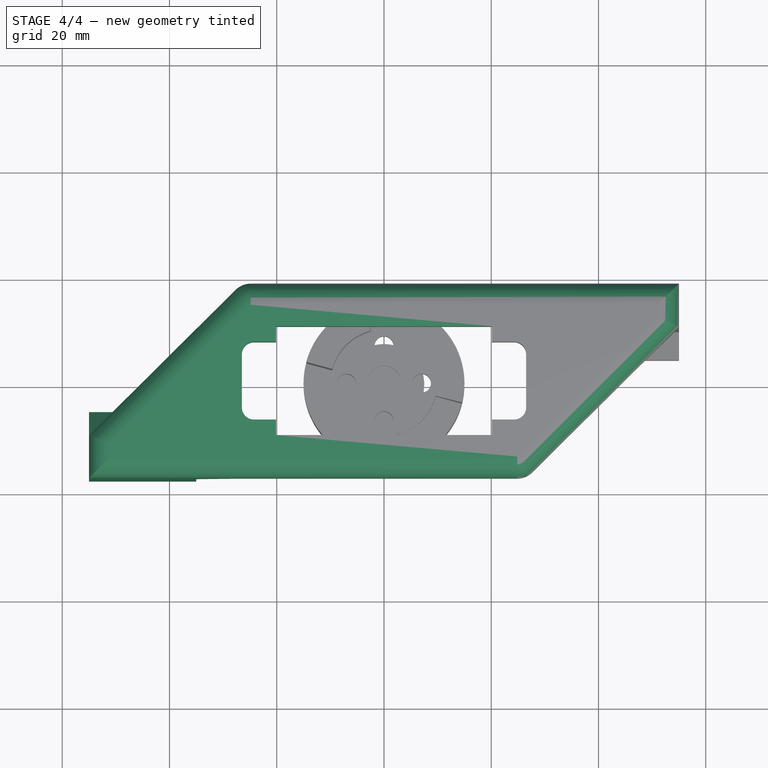
[diagram: stage 4 of 4 — top view after this stage's code; geometry added in this stage tinted green]
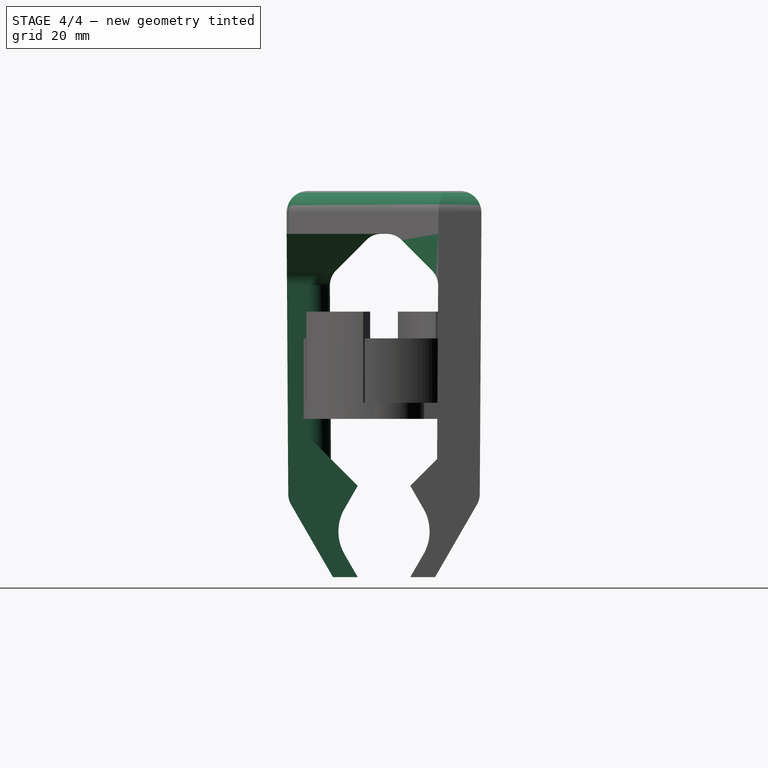
[diagram: stage 4 of 4 — right view after this stage's code; geometry added in this stage tinted green]
FEATURE [PartDesign::Fillet] Fillet
  Base = -> Pocket [Edge82]
  BaseFeature = -> Pocket
  Radius = 8.5
  SupportTransform = false
  UseAllEdges = false
  expr: Radius = Spreadsheet.pipe_od / 2
FEATURE [PartDesign::Chamfer] Chamfer
  Angle = 45
  Base = -> Fillet [Edge37,Edge9]
  BaseFeature = -> Fillet
  ChamferType = 0
  FlipDirection = false
  Size = 8
  Size2 = 1
  SupportTransform = false
  UseAllEdges = false
FEATURE [PartDesign::Fillet] Fillet001
  Base = -> Chamfer [Edge45,Edge23,Edge2,Edge71,Edge68,Edge100,Edge84,Edge11,Edge15,Edge4,Edge67]
  BaseFeature = -> Chamfer
  Radius = 4
  SupportTransform = false
  UseAllEdges = false
FEATURE [PartDesign::Body] Body
  Group = -> [Sketch,Pad,Sketch002,Pad002,DatumPlane,Sketch003,Pocket,Fillet,Chamfer,Fillet001]
  Origin = -> Origin002
  Tip = -> Fillet001
FEATURE [App::Part] Part  label="bracket"
  Group = -> [Body]
  Origin = -> Origin
FEATURE [Part::FeaturePython] Array  # Draft array (typed FeaturePython)
  Angle = 360
  ArrayType = 1
  Axis = (0,0,1)
  Base = -> Body
  Center = (0,0,0)
  Fuse = true
  IntervalAxis = (0,0,0)
  IntervalX = (50,0,0)
  IntervalY = (0,50,0)
  IntervalZ = (0,0,50)
  NumberCircles = 3
  NumberPolar = 2
  NumberX = 2
  NumberY = 2
  NumberZ = 1
  RadialDistance = 50
  Symmetry = 1
  TangentialDistance = 25
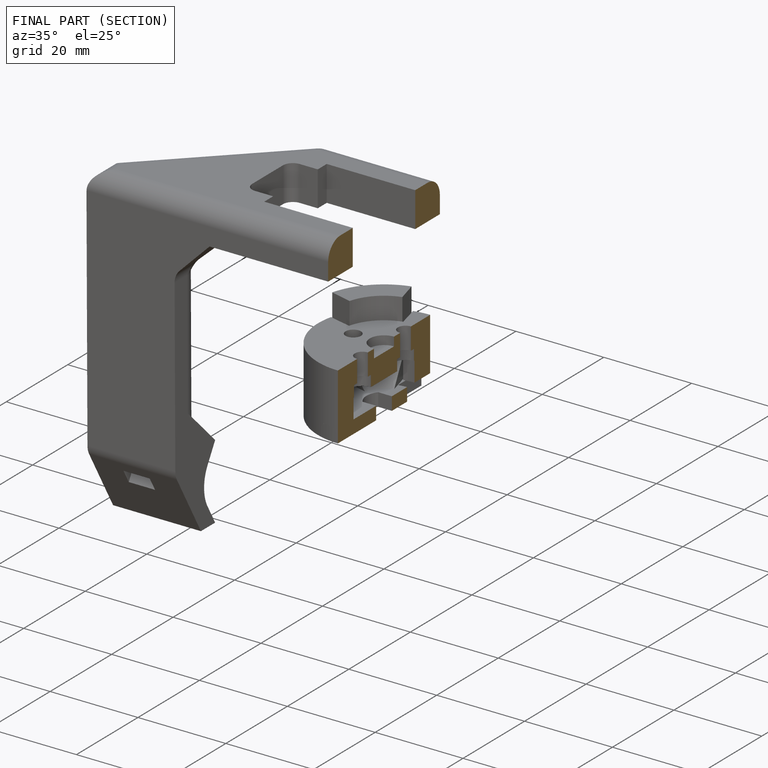
[diagram: finished part — half-section view (interior)]
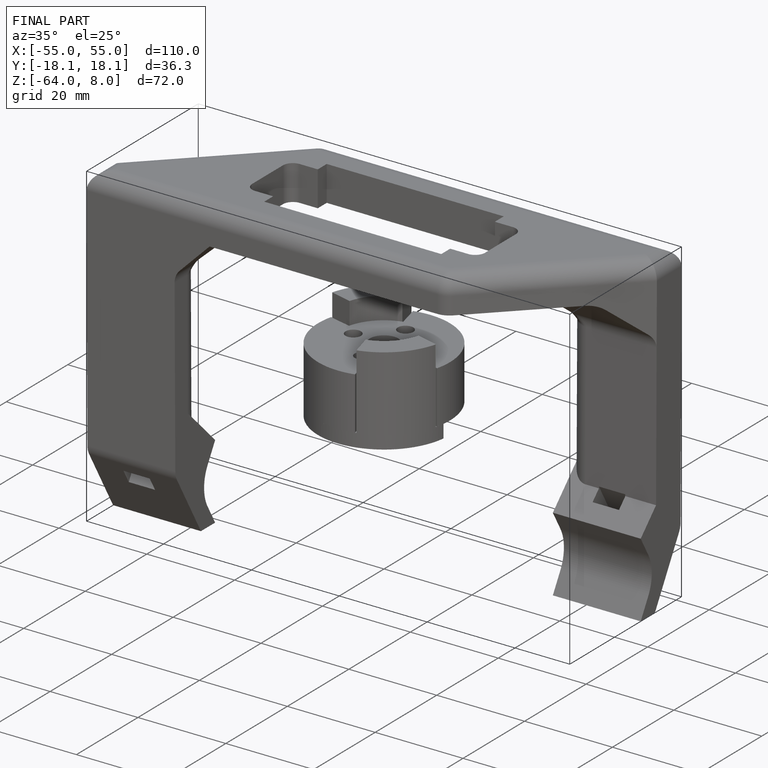
[diagram: finished part — iso view with bounding-box wireframe]
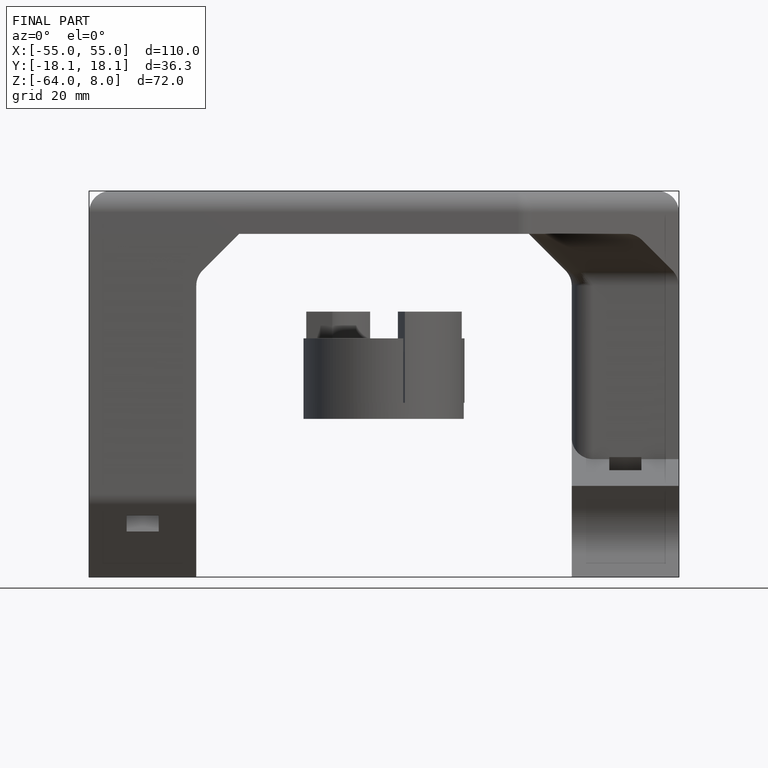
[diagram: finished part — front view with bounding-box wireframe]
